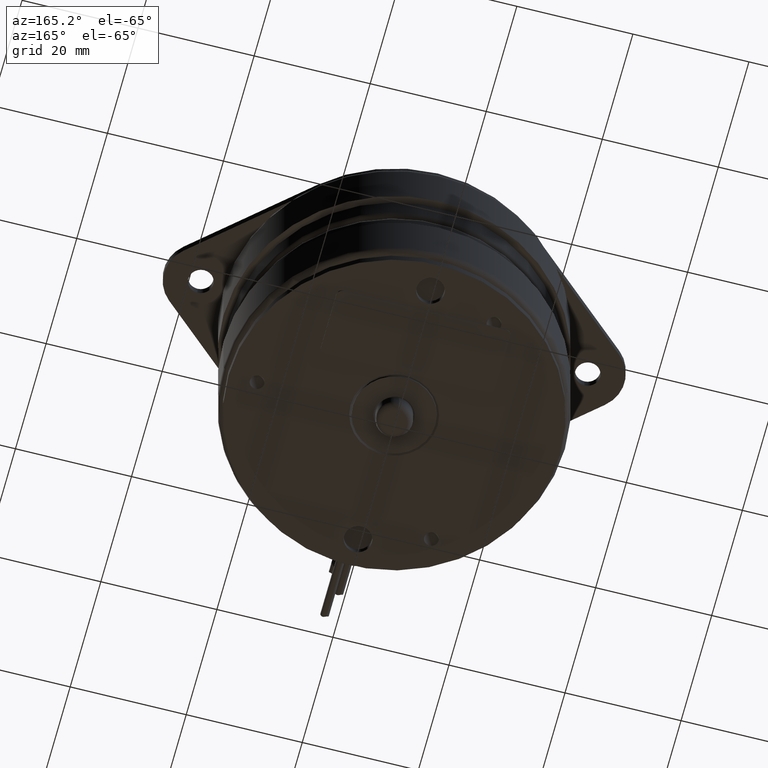
[diagram: clean part render]
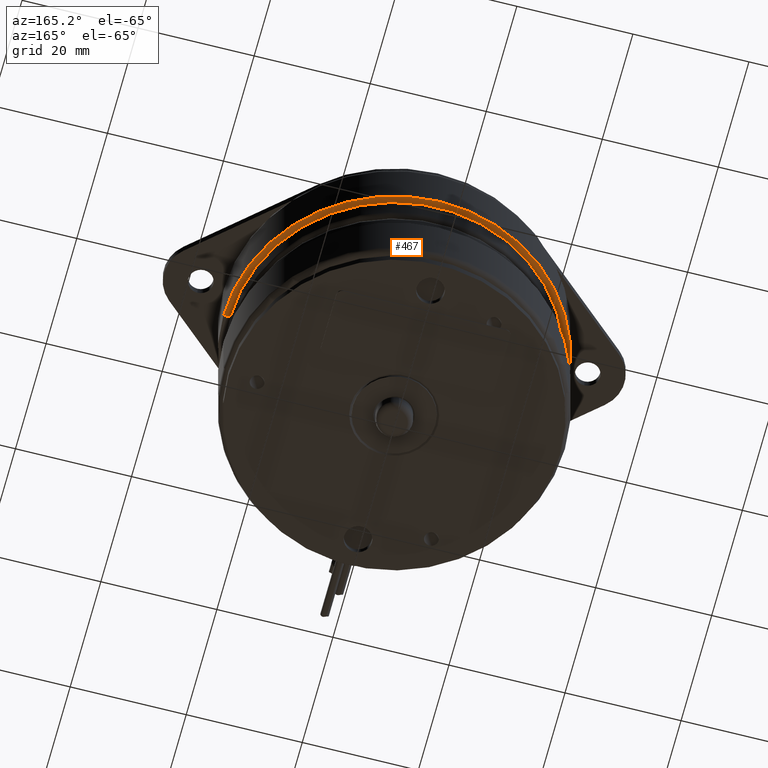
[diagram: same view with one face highlighted and labeled with its STEP entity id]
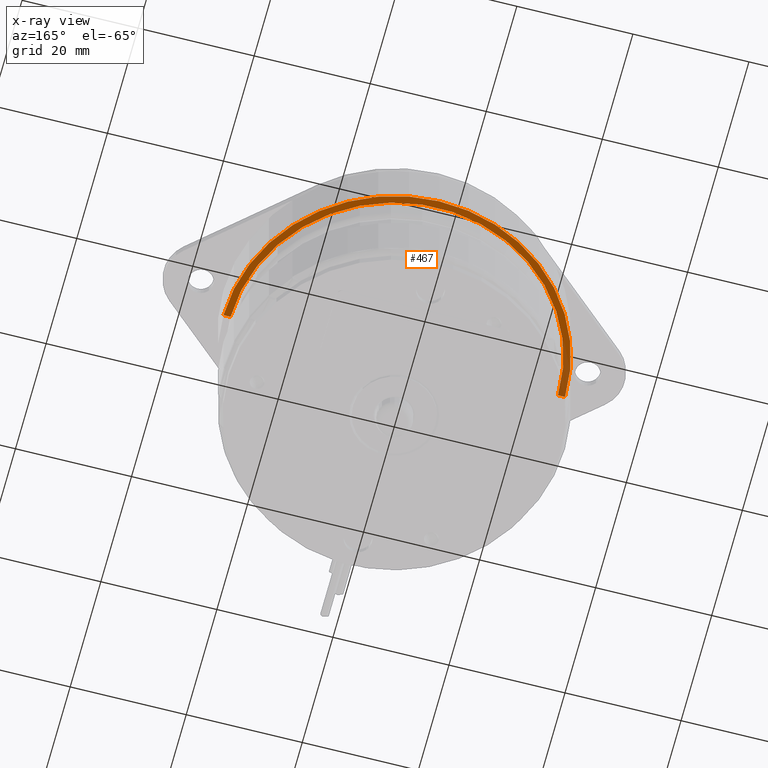
[diagram: x-ray of the same camera — body ghosted, the highlighted face saturated]
A machine part, auxiliary view. The second image highlights one B-rep face of the part: STEP entity #467.
The next image is the same camera in x-ray: the body ghosted, the highlighted face saturated — about 9% of this face is hidden behind the body in this view.
In plain terms, the highlighted planar face has unit normal (0, 0, -1).
Its self-contained STEP definition (entity closure, byte-faithful):
#114=DIRECTION('',(0.E0,0.E0,1.E0));
#115=VECTOR('',#114,4.8E-2);
#116=CARTESIAN_POINT('',(-4.4E-1,0.E0,1.111E0));
#117=LINE('',#116,#115);
#123=CARTESIAN_POINT('',(-4.4E-1,0.E0,0.E0));
#124=DIRECTION('',(1.E0,0.E0,0.E0));
#125=DIRECTION('',(0.E0,0.E0,-1.E0));
#126=AXIS2_PLACEMENT_3D('',#123,#124,#125);
#128=CARTESIAN_POINT('',(-4.4E-1,0.E0,0.E0));
#129=DIRECTION('',(-1.E0,0.E0,0.E0));
#130=DIRECTION('',(0.E0,0.E0,1.E0));
#131=AXIS2_PLACEMENT_3D('',#128,#129,#130);
#133=DIRECTION('',(0.E0,0.E0,-1.E0));
#134=VECTOR('',#133,4.8E-2);
#135=CARTESIAN_POINT('',(-4.4E-1,0.E0,-1.111E0));
#136=LINE('',#135,#134);
#267=CARTESIAN_POINT('',(-4.4E-1,0.E0,-1.111E0));
#268=VERTEX_POINT('',#267);
#269=CARTESIAN_POINT('',(-4.4E-1,0.E0,1.111E0));
#270=VERTEX_POINT('',#269);
#293=CARTESIAN_POINT('',(-4.4E-1,0.E0,-1.159E0));
#294=VERTEX_POINT('',#293);
#295=CARTESIAN_POINT('',(-4.4E-1,0.E0,1.159E0));
#296=VERTEX_POINT('',#295);
#454=CARTESIAN_POINT('',(-4.4E-1,1.135E0,0.E0));
#455=DIRECTION('',(-1.E0,0.E0,0.E0));
#456=DIRECTION('',(0.E0,1.E0,0.E0));
#457=AXIS2_PLACEMENT_3D('',#454,#455,#456);
#458=PLANE('',#457);
#460=ORIENTED_EDGE('',*,*,#459,.T.);
#461=ORIENTED_EDGE('',*,*,#446,.F.);
#462=ORIENTED_EDGE('',*,*,#350,.T.);
#464=ORIENTED_EDGE('',*,*,#463,.T.);
#465=EDGE_LOOP('',(#460,#461,#462,#464));
#466=FACE_OUTER_BOUND('',#465,.F.);
#467=ADVANCED_FACE('',(#466),#458,.T.);
#127=CIRCLE('',#126,1.159E0);
#132=CIRCLE('',#131,1.111E0);
#350=EDGE_CURVE('',#270,#268,#132,.T.);
#446=EDGE_CURVE('',#270,#296,#117,.T.);
#459=EDGE_CURVE('',#294,#296,#127,.T.);
#463=EDGE_CURVE('',#268,#294,#136,.T.);